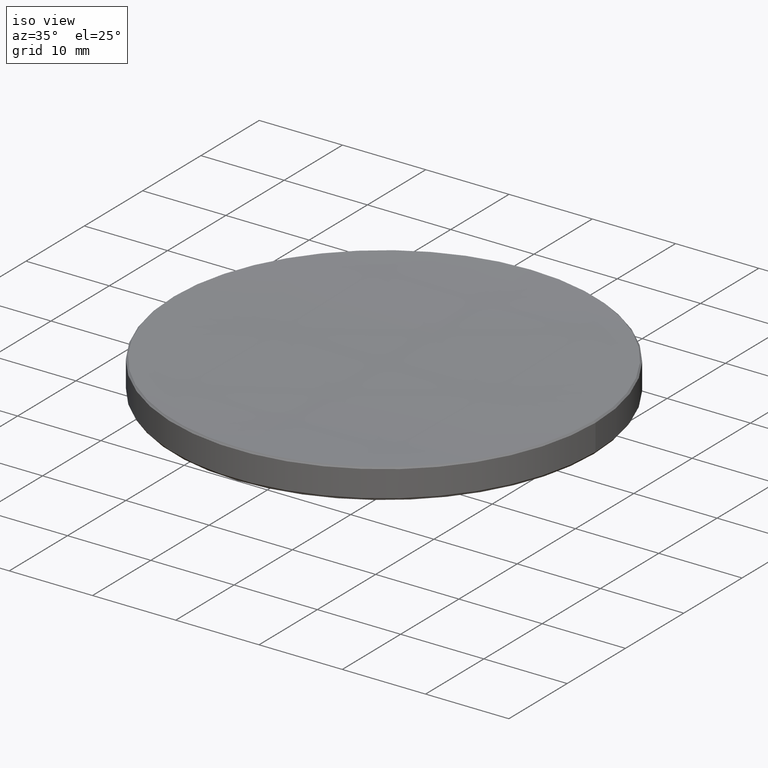
[diagram: clean part render]
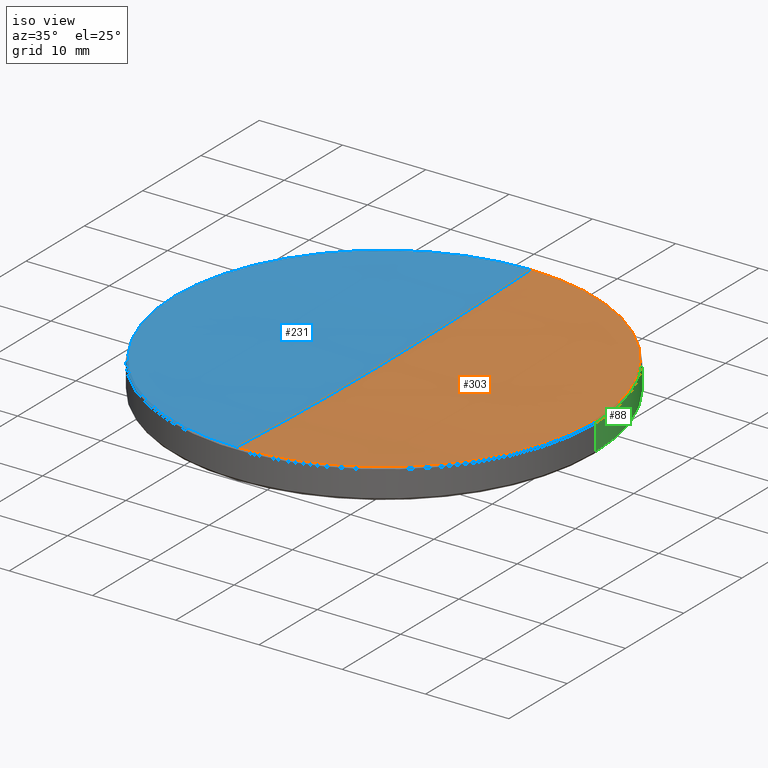
[diagram: same view with three faces highlighted in distinct colors, each labeled with its STEP entity id]
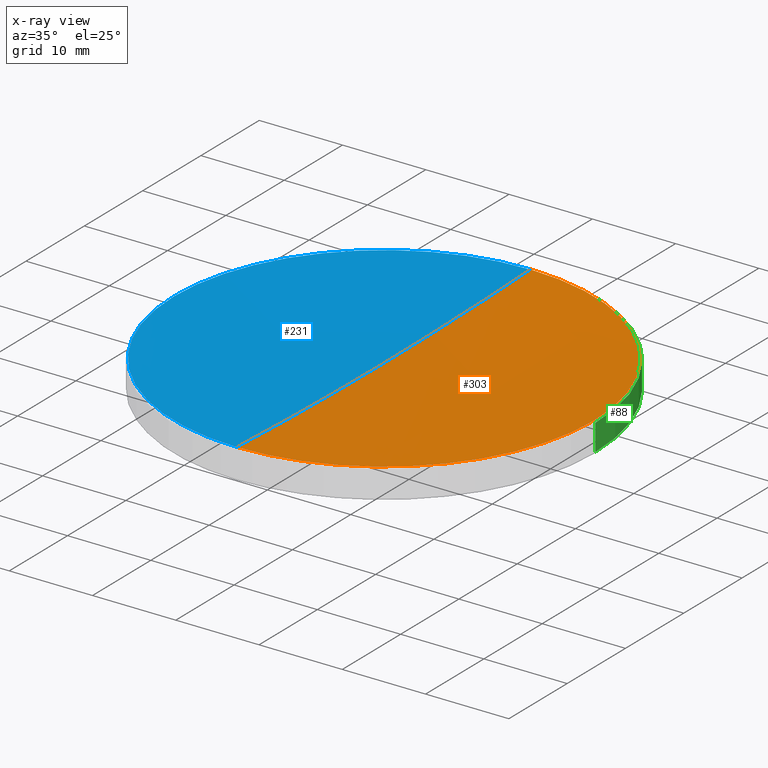
[diagram: x-ray of the same camera — body ghosted, the three highlighted faces saturated]
A machine part, iso view with three faces highlighted in distinct colors.
The next image is the same camera in x-ray (body ghosted, the three faces saturated) — at least one of them is partly hidden behind the body in this view.
Their STEP definitions:

[orange] entity #303 — the highlighted spherical surface has radius 582.75 mm.
#3 = CIRCLE ( 'NONE', #282, 25.20833052741164693 ) ;
#9 = AXIS2_PLACEMENT_3D ( 'NONE', #148, #249, #124 ) ;
#12 = ORIENTED_EDGE ( 'NONE', *, *, #326, .T. ) ;
#14 = VERTEX_POINT ( 'NONE', #146 ) ;
#18 = CARTESIAN_POINT ( 'NONE',  ( 0.000000000000000000, 3.568314611015600113E-14, 17.04618901191712155 ) ) ;
#29 = CIRCLE ( 'NONE', #91, 25.20833052741164693 ) ;
#40 = ORIENTED_EDGE ( 'NONE', *, *, #331, .T. ) ;
#44 = VERTEX_POINT ( 'NONE', #18 ) ;
#45 = DIRECTION ( 'NONE',  ( 1.000000000000000000, 0.000000000000000000, 0.000000000000000000 ) ) ;
#68 = CARTESIAN_POINT ( 'NONE',  ( 0.000000000000000000, 25.20833052741184588, 17.59166947258827918 ) ) ;
#74 = DIRECTION ( 'NONE',  ( 1.000000000000000000, 0.000000000000000000, 0.000000000000000000 ) ) ;
#77 = DIRECTION ( 'NONE',  ( -1.000000000000000000, 0.000000000000000000, 0.000000000000000000 ) ) ;
#84 = DIRECTION ( 'NONE',  ( -0.000000000000000000, -0.000000000000000000, 1.000000000000000000 ) ) ;
#86 = CIRCLE ( 'NONE', #263, 582.7500000000000000 ) ;
#87 = EDGE_CURVE ( 'NONE', #14, #247, #3, .T. ) ;
#91 = AXIS2_PLACEMENT_3D ( 'NONE', #208, #84, #45 ) ;
#99 = EDGE_LOOP ( 'NONE', ( #174, #40, #12, #288 ) ) ;
#102 = CARTESIAN_POINT ( 'NONE',  ( 0.000000000000000000, 0.000000000000000000, 17.59166947258827918 ) ) ;
#106 = CARTESIAN_POINT ( 'NONE',  ( -3.087130129224342369E-15, -25.20833052741184588, 17.59166947258827918 ) ) ;
#108 = DIRECTION ( 'NONE',  ( 0.000000000000000000, 0.000000000000000000, -1.000000000000000000 ) ) ;
#124 = DIRECTION ( 'NONE',  ( -1.224646799147353207E-16, -1.000000000000000000, 0.000000000000000000 ) ) ;
#128 = EDGE_CURVE ( 'NONE', #44, #247, #86, .T. ) ;
#130 = CARTESIAN_POINT ( 'NONE',  ( 0.000000000000000000, 0.000000000000000000, 599.7961890119171358 ) ) ;
#146 = CARTESIAN_POINT ( 'NONE',  ( 25.20833052741164693, 3.098866499529297784E-15, 17.59166947258827918 ) ) ;
#148 = CARTESIAN_POINT ( 'NONE',  ( 0.000000000000000000, 0.000000000000000000, 599.7961890119171358 ) ) ;
#151 = DIRECTION ( 'NONE',  ( 0.000000000000000000, 1.000000000000000000, 0.000000000000000000 ) ) ;
#160 = AXIS2_PLACEMENT_3D ( 'NONE', #130, #77, #151 ) ;
#174 = ORIENTED_EDGE ( 'NONE', *, *, #128, .F. ) ;
#178 = FACE_OUTER_BOUND ( 'NONE', #99, .T. ) ;
#181 = DIRECTION ( 'NONE',  ( 1.000000000000000000, 0.000000000000000000, 0.000000000000000000 ) ) ;
#200 = DIRECTION ( 'NONE',  ( -0.000000000000000000, -0.000000000000000000, 1.000000000000000000 ) ) ;
#207 = CARTESIAN_POINT ( 'NONE',  ( 0.000000000000000000, 0.000000000000000000, 599.7961890119171358 ) ) ;
#208 = CARTESIAN_POINT ( 'NONE',  ( 0.000000000000000000, 0.000000000000000000, 17.59166947258827918 ) ) ;
#212 = CIRCLE ( 'NONE', #9, 582.7500000000000000 ) ;
#239 = VERTEX_POINT ( 'NONE', #106 ) ;
#247 = VERTEX_POINT ( 'NONE', #68 ) ;
#249 = DIRECTION ( 'NONE',  ( -1.000000000000000000, 1.224646799147353207E-16, 0.000000000000000000 ) ) ;
#263 = AXIS2_PLACEMENT_3D ( 'NONE', #207, #181, #108 ) ;
#282 = AXIS2_PLACEMENT_3D ( 'NONE', #102, #200, #74 ) ;
#288 = ORIENTED_EDGE ( 'NONE', *, *, #87, .T. ) ;
#303 = ADVANCED_FACE ( 'NONE', ( #178 ), #307, .F. ) ;
#307 = SPHERICAL_SURFACE ( 'NONE', #160, 582.7500000000000000 ) ;
#326 = EDGE_CURVE ( 'NONE', #239, #14, #29, .T. ) ;
#331 = EDGE_CURVE ( 'NONE', #44, #239, #212, .T. ) ;

[blue] entity #231 — the highlighted spherical surface has radius 582.75 mm.
#9 = AXIS2_PLACEMENT_3D ( 'NONE', #148, #249, #124 ) ;
#18 = CARTESIAN_POINT ( 'NONE',  ( 0.000000000000000000, 3.568314611015600113E-14, 17.04618901191712155 ) ) ;
#23 = DIRECTION ( 'NONE',  ( 0.000000000000000000, 1.000000000000000000, 0.000000000000000000 ) ) ;
#31 = DIRECTION ( 'NONE',  ( 1.000000000000000000, 0.000000000000000000, 0.000000000000000000 ) ) ;
#44 = VERTEX_POINT ( 'NONE', #18 ) ;
#59 = CIRCLE ( 'NONE', #125, 25.20833052741164693 ) ;
#60 = CARTESIAN_POINT ( 'NONE',  ( 0.000000000000000000, 0.000000000000000000, 17.59166947258827918 ) ) ;
#67 = ORIENTED_EDGE ( 'NONE', *, *, #331, .F. ) ;
#68 = CARTESIAN_POINT ( 'NONE',  ( 0.000000000000000000, 25.20833052741184588, 17.59166947258827918 ) ) ;
#76 = CARTESIAN_POINT ( 'NONE',  ( -25.20833052741164693, 0.000000000000000000, 17.59166947258827918 ) ) ;
#85 = DIRECTION ( 'NONE',  ( -1.000000000000000000, 0.000000000000000000, 0.000000000000000000 ) ) ;
#86 = CIRCLE ( 'NONE', #263, 582.7500000000000000 ) ;
#95 = AXIS2_PLACEMENT_3D ( 'NONE', #179, #85, #23 ) ;
#106 = CARTESIAN_POINT ( 'NONE',  ( -3.087130129224342369E-15, -25.20833052741184588, 17.59166947258827918 ) ) ;
#108 = DIRECTION ( 'NONE',  ( 0.000000000000000000, 0.000000000000000000, -1.000000000000000000 ) ) ;
#115 = VERTEX_POINT ( 'NONE', #76 ) ;
#124 = DIRECTION ( 'NONE',  ( -1.224646799147353207E-16, -1.000000000000000000, 0.000000000000000000 ) ) ;
#125 = AXIS2_PLACEMENT_3D ( 'NONE', #325, #324, #229 ) ;
#128 = EDGE_CURVE ( 'NONE', #44, #247, #86, .T. ) ;
#147 = ORIENTED_EDGE ( 'NONE', *, *, #153, .T. ) ;
#148 = CARTESIAN_POINT ( 'NONE',  ( 0.000000000000000000, 0.000000000000000000, 599.7961890119171358 ) ) ;
#150 = SPHERICAL_SURFACE ( 'NONE', #95, 582.7500000000000000 ) ;
#153 = EDGE_CURVE ( 'NONE', #115, #239, #59, .T. ) ;
#173 = ORIENTED_EDGE ( 'NONE', *, *, #255, .T. ) ;
#175 = DIRECTION ( 'NONE',  ( -0.000000000000000000, -0.000000000000000000, 1.000000000000000000 ) ) ;
#179 = CARTESIAN_POINT ( 'NONE',  ( 0.000000000000000000, 0.000000000000000000, 599.7961890119171358 ) ) ;
#181 = DIRECTION ( 'NONE',  ( 1.000000000000000000, 0.000000000000000000, 0.000000000000000000 ) ) ;
#207 = CARTESIAN_POINT ( 'NONE',  ( 0.000000000000000000, 0.000000000000000000, 599.7961890119171358 ) ) ;
#212 = CIRCLE ( 'NONE', #9, 582.7500000000000000 ) ;
#229 = DIRECTION ( 'NONE',  ( 1.000000000000000000, 0.000000000000000000, 0.000000000000000000 ) ) ;
#231 = ADVANCED_FACE ( 'NONE', ( #274 ), #150, .F. ) ;
#234 = AXIS2_PLACEMENT_3D ( 'NONE', #60, #175, #31 ) ;
#239 = VERTEX_POINT ( 'NONE', #106 ) ;
#247 = VERTEX_POINT ( 'NONE', #68 ) ;
#249 = DIRECTION ( 'NONE',  ( -1.000000000000000000, 1.224646799147353207E-16, 0.000000000000000000 ) ) ;
#255 = EDGE_CURVE ( 'NONE', #247, #115, #292, .T. ) ;
#263 = AXIS2_PLACEMENT_3D ( 'NONE', #207, #181, #108 ) ;
#274 = FACE_OUTER_BOUND ( 'NONE', #316, .T. ) ;
#285 = ORIENTED_EDGE ( 'NONE', *, *, #128, .T. ) ;
#292 = CIRCLE ( 'NONE', #234, 25.20833052741164693 ) ;
#316 = EDGE_LOOP ( 'NONE', ( #67, #285, #173, #147 ) ) ;
#324 = DIRECTION ( 'NONE',  ( -0.000000000000000000, -0.000000000000000000, 1.000000000000000000 ) ) ;
#325 = CARTESIAN_POINT ( 'NONE',  ( 0.000000000000000000, 0.000000000000000000, 17.59166947258827918 ) ) ;
#331 = EDGE_CURVE ( 'NONE', #44, #239, #212, .T. ) ;

[green] entity #88 — the highlighted cylindrical surface (partial cylindrical patch) has radius 25.4 mm, axis along (-0, -0, -1).
#4 = DIRECTION ( 'NONE',  ( -0.000000000000000000, -0.000000000000000000, -1.000000000000000000 ) ) ;
#5 = CARTESIAN_POINT ( 'NONE',  ( 0.000000000000000000, 0.000000000000000000, 17.39999999999997016 ) ) ;
#15 = VERTEX_POINT ( 'NONE', #270 ) ;
#19 = DIRECTION ( 'NONE',  ( -0.000000000000000000, -0.000000000000000000, 1.000000000000000000 ) ) ;
#26 = DIRECTION ( 'NONE',  ( -0.000000000000000000, -0.000000000000000000, -1.000000000000000000 ) ) ;
#49 = CARTESIAN_POINT ( 'NONE',  ( -25.39999999999999858, 0.000000000000000000, 20.00000000000000000 ) ) ;
#51 = CARTESIAN_POINT ( 'NONE',  ( -25.39999999999999858, 0.000000000000000000, 17.39999999999997016 ) ) ;
#53 = AXIS2_PLACEMENT_3D ( 'NONE', #5, #236, #312 ) ;
#75 = LINE ( 'NONE', #322, #332 ) ;
#88 = ADVANCED_FACE ( 'NONE', ( #272 ), #137, .T. ) ;
#111 = AXIS2_PLACEMENT_3D ( 'NONE', #127, #19, #126 ) ;
#121 = ORIENTED_EDGE ( 'NONE', *, *, #261, .T. ) ;
#126 = DIRECTION ( 'NONE',  ( -1.000000000000000000, 0.000000000000000000, 0.000000000000000000 ) ) ;
#127 = CARTESIAN_POINT ( 'NONE',  ( 0.000000000000000000, 0.000000000000000000, 14.23965329215320885 ) ) ;
#137 = CYLINDRICAL_SURFACE ( 'NONE', #246, 25.39999999999999858 ) ;
#156 = DIRECTION ( 'NONE',  ( -0.000000000000000000, -0.000000000000000000, -1.000000000000000000 ) ) ;
#158 = CIRCLE ( 'NONE', #53, 25.39999999999999858 ) ;
#164 = CARTESIAN_POINT ( 'NONE',  ( 25.39999999999999858, 3.110602869834276865E-15, 17.39999999999997016 ) ) ;
#166 = CIRCLE ( 'NONE', #111, 25.39999999999999858 ) ;
#169 = VERTEX_POINT ( 'NONE', #254 ) ;
#180 = EDGE_CURVE ( 'NONE', #169, #15, #166, .T. ) ;
#186 = EDGE_CURVE ( 'NONE', #290, #15, #225, .T. ) ;
#218 = ORIENTED_EDGE ( 'NONE', *, *, #186, .F. ) ;
#225 = LINE ( 'NONE', #49, #259 ) ;
#236 = DIRECTION ( 'NONE',  ( 0.000000000000000000, 0.000000000000000000, -1.000000000000000000 ) ) ;
#238 = CARTESIAN_POINT ( 'NONE',  ( 0.000000000000000000, 0.000000000000000000, 20.00000000000000000 ) ) ;
#244 = EDGE_LOOP ( 'NONE', ( #121, #265, #291, #218 ) ) ;
#246 = AXIS2_PLACEMENT_3D ( 'NONE', #238, #4, #313 ) ;
#254 = CARTESIAN_POINT ( 'NONE',  ( 25.39999999999999858, 3.110602869834276865E-15, 14.23965329215320885 ) ) ;
#259 = VECTOR ( 'NONE', #26, 1000.000000000000000 ) ;
#261 = EDGE_CURVE ( 'NONE', #290, #269, #158, .T. ) ;
#265 = ORIENTED_EDGE ( 'NONE', *, *, #298, .T. ) ;
#269 = VERTEX_POINT ( 'NONE', #164 ) ;
#270 = CARTESIAN_POINT ( 'NONE',  ( -25.39999999999999858, 0.000000000000000000, 14.23965329215320885 ) ) ;
#272 = FACE_OUTER_BOUND ( 'NONE', #244, .T. ) ;
#290 = VERTEX_POINT ( 'NONE', #51 ) ;
#291 = ORIENTED_EDGE ( 'NONE', *, *, #180, .T. ) ;
#298 = EDGE_CURVE ( 'NONE', #269, #169, #75, .T. ) ;
#312 = DIRECTION ( 'NONE',  ( 1.000000000000000000, 0.000000000000000000, 0.000000000000000000 ) ) ;
#313 = DIRECTION ( 'NONE',  ( -1.000000000000000000, 0.000000000000000000, 0.000000000000000000 ) ) ;
#322 = CARTESIAN_POINT ( 'NONE',  ( 25.39999999999999858, 3.110602869834276865E-15, 20.00000000000000000 ) ) ;
#332 = VECTOR ( 'NONE', #156, 1000.000000000000000 ) ;